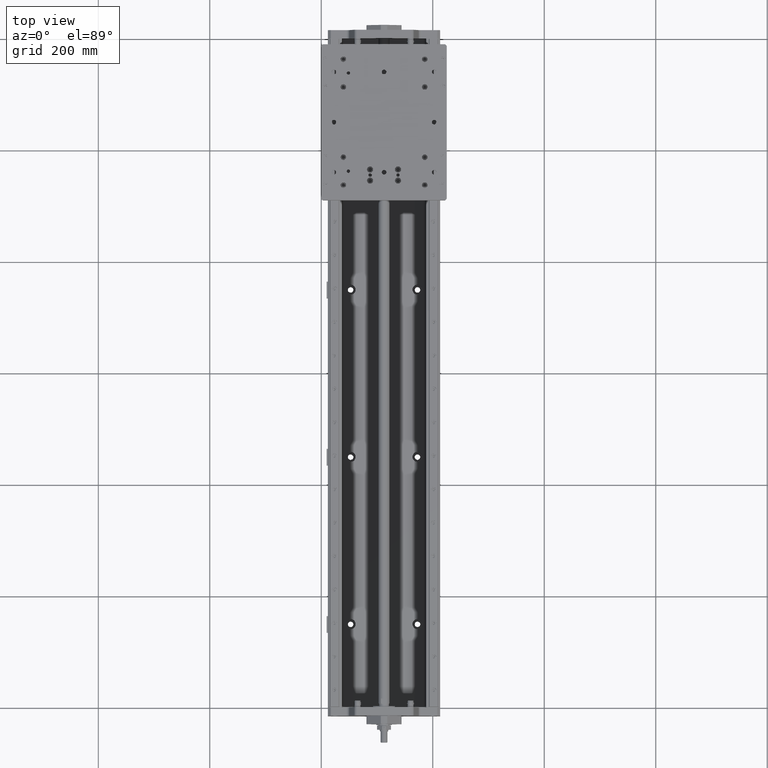
[diagram: clean part render]
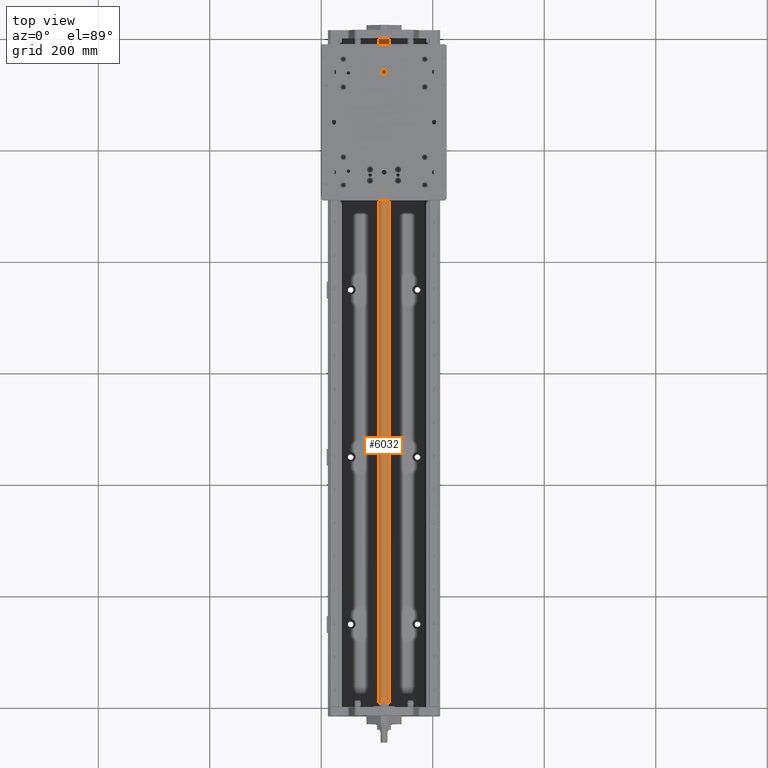
[diagram: same view with one face highlighted and labeled with its STEP entity id]
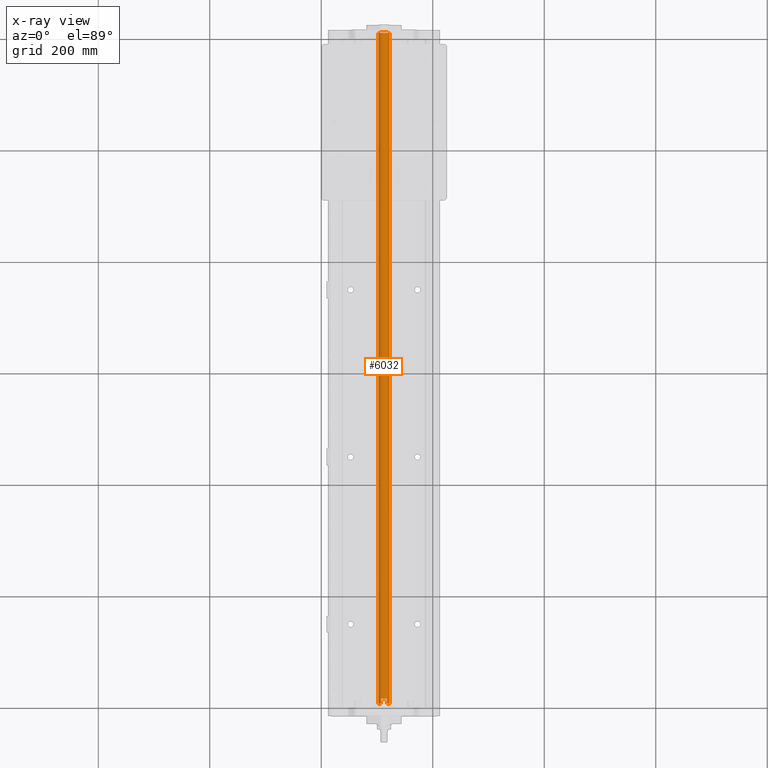
[diagram: x-ray of the same camera — body ghosted, the highlighted face saturated]
A machine part, top view. The second image highlights one B-rep face of the part: STEP entity #6032.
The next image is the same camera in x-ray: the body ghosted, the highlighted face saturated — about 0% of this face is hidden behind the body in this view.
In plain terms, the highlighted cylindrical surface (bore or boss wall) has radius 10 mm, axis along (0, -1, 0).
Its self-contained STEP definition (entity closure, byte-faithful):
#5716=CARTESIAN_POINT('',(117.767826876427800,-192.999999999999970,80.500000000000171));
#5717=VERTEX_POINT('',#5716);
#5725=CARTESIAN_POINT('',(117.767826876427800,-183.999999999999910,80.500000000000171));
#5726=VERTEX_POINT('',#5725);
#5727=CARTESIAN_POINT('',(117.767826876427800,-183.999999999999910,80.500000000000171));
#5728=DIRECTION('',(0.0,-1.0,0.0));
#5729=VECTOR('',#5728,9.000000000000057);
#5730=LINE('',#5727,#5729);
#5731=EDGE_CURVE('',#5726,#5717,#5730,.T.);
#5733=CARTESIAN_POINT('',(107.232173123575070,-183.999999999999910,80.500000000000171));
#5734=VERTEX_POINT('',#5733);
#5741=CARTESIAN_POINT('',(107.232173123575070,-192.999999999999970,80.500000000000171));
#5742=VERTEX_POINT('',#5741);
#5743=CARTESIAN_POINT('',(107.232173123575070,-192.999999999999970,80.500000000000171));
#5744=DIRECTION('',(0.0,1.0,0.0));
#5745=VECTOR('',#5744,9.000000000000057);
#5746=LINE('',#5743,#5745);
#5747=EDGE_CURVE('',#5742,#5734,#5746,.T.);
#5765=CARTESIAN_POINT('',(112.500000000001440,-183.999999999999910,72.000000000000156));
#5766=DIRECTION('',(0.0,1.0,0.0));
#5767=DIRECTION('',(0.0,0.0,-1.0));
#5768=AXIS2_PLACEMENT_3D('',#5765,#5766,#5767);
#5769=CIRCLE('',#5768,10.0);
#5770=EDGE_CURVE('',#5734,#5726,#5769,.T.);
#5781=CARTESIAN_POINT('',(117.767826876427800,-192.999999999999970,63.500000000000156));
#5782=VERTEX_POINT('',#5781);
#5791=CARTESIAN_POINT('',(107.232173123575070,-192.999999999999970,63.500000000000156));
#5792=VERTEX_POINT('',#5791);
#5800=CARTESIAN_POINT('',(107.232173123575070,-183.999999999999910,63.500000000000156));
#5801=VERTEX_POINT('',#5800);
#5802=CARTESIAN_POINT('',(107.232173123575070,-183.999999999999910,63.500000000000156));
#5803=DIRECTION('',(0.0,-1.0,0.0));
#5804=VECTOR('',#5803,9.000000000000057);
#5805=LINE('',#5802,#5804);
#5806=EDGE_CURVE('',#5801,#5792,#5805,.T.);
#5808=CARTESIAN_POINT('',(117.767826876427800,-183.999999999999910,63.500000000000156));
#5809=VERTEX_POINT('',#5808);
#5816=CARTESIAN_POINT('',(117.767826876427800,-192.999999999999970,63.500000000000156));
#5817=DIRECTION('',(0.0,1.0,0.0));
#5818=VECTOR('',#5817,9.000000000000057);
#5819=LINE('',#5816,#5818);
#5820=EDGE_CURVE('',#5782,#5809,#5819,.T.);
#5830=CARTESIAN_POINT('',(112.500000000001440,-183.999999999999910,72.000000000000156));
#5831=DIRECTION('',(0.0,1.0,0.0));
#5832=DIRECTION('',(0.0,0.0,-1.0));
#5833=AXIS2_PLACEMENT_3D('',#5830,#5831,#5832);
#5834=CIRCLE('',#5833,10.0);
#5835=EDGE_CURVE('',#5809,#5801,#5834,.T.);
#5847=CARTESIAN_POINT('',(112.500000000001440,-192.999999999999970,72.000000000000156));
#5848=DIRECTION('',(0.0,-1.0,0.0));
#5849=DIRECTION('',(0.0,0.0,-1.0));
#5850=AXIS2_PLACEMENT_3D('',#5847,#5848,#5849);
#5851=CIRCLE('',#5850,10.0);
#5852=EDGE_CURVE('',#5742,#5792,#5851,.T.);
#5993=CARTESIAN_POINT('',(112.500000000001440,1010.000000000000100,82.000000000000171));
#5994=VERTEX_POINT('',#5993);
#5995=CARTESIAN_POINT('',(112.500000000001440,1010.000000000000100,72.000000000000156));
#5996=DIRECTION('',(0.0,1.0,0.0));
#5997=DIRECTION('',(0.0,0.0,-1.0));
#5998=AXIS2_PLACEMENT_3D('',#5995,#5996,#5997);
#5999=CIRCLE('',#5998,10.0);
#6000=EDGE_CURVE('',#5994,#5994,#5999,.T.);
#6008=CARTESIAN_POINT('',(112.500000000001440,1011.000000000000100,72.000000000000156));
#6009=DIRECTION('',(0.0,-1.0,0.0));
#6010=DIRECTION('',(0.0,0.0,-1.0));
#6011=AXIS2_PLACEMENT_3D('',#6008,#6009,#6010);
#6012=CYLINDRICAL_SURFACE('',#6011,10.0);
#6013=ORIENTED_EDGE('',*,*,#5731,.T.);
#6014=CARTESIAN_POINT('',(112.500000000001440,-192.999999999999970,72.000000000000156));
#6015=DIRECTION('',(0.0,-1.0,0.0));
#6016=DIRECTION('',(0.0,0.0,-1.0));
#6017=AXIS2_PLACEMENT_3D('',#6014,#6015,#6016);
#6018=CIRCLE('',#6017,10.0);
#6019=EDGE_CURVE('',#5782,#5717,#6018,.T.);
#6020=ORIENTED_EDGE('',*,*,#6019,.F.);
#6021=ORIENTED_EDGE('',*,*,#5820,.T.);
#6022=ORIENTED_EDGE('',*,*,#5835,.T.);
#6023=ORIENTED_EDGE('',*,*,#5806,.T.);
#6024=ORIENTED_EDGE('',*,*,#5852,.F.);
#6025=ORIENTED_EDGE('',*,*,#5747,.T.);
#6026=ORIENTED_EDGE('',*,*,#5770,.T.);
#6027=EDGE_LOOP('',(#6013,#6020,#6021,#6022,#6023,#6024,#6025,#6026));
#6028=FACE_OUTER_BOUND('',#6027,.T.);
#6029=ORIENTED_EDGE('',*,*,#6000,.F.);
#6030=EDGE_LOOP('',(#6029));
#6031=FACE_BOUND('',#6030,.T.);
#6032=ADVANCED_FACE('',(#6028,#6031),#6012,.T.);